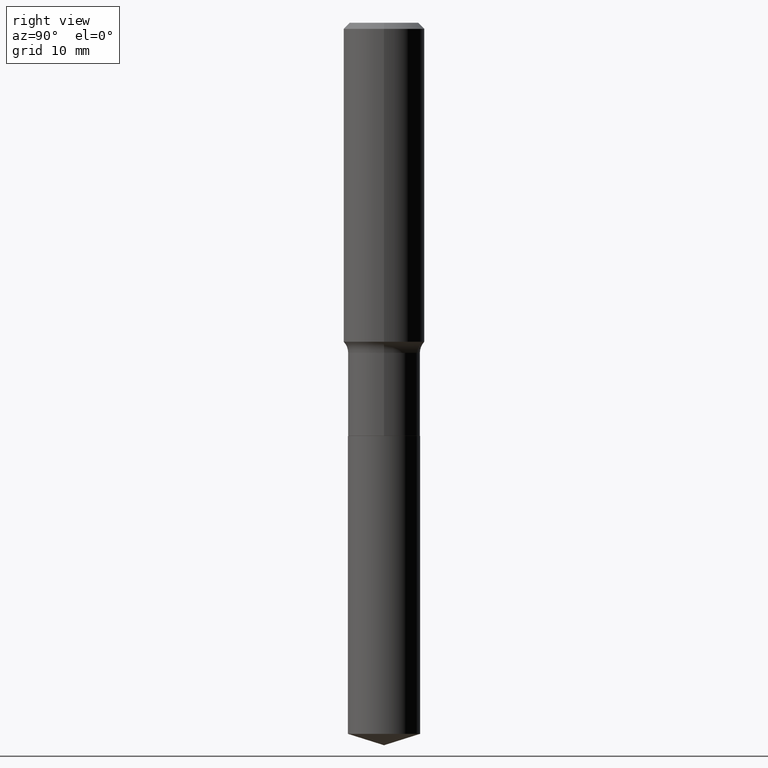
[diagram: clean part render]
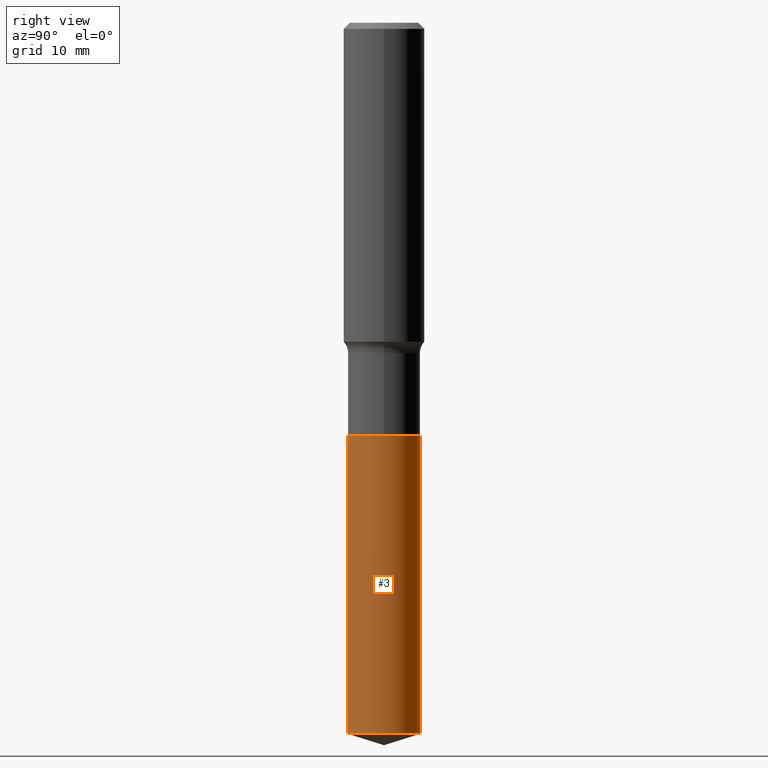
[diagram: same view with one face highlighted and labeled with its STEP entity id]
A machine part, right view. The second image highlights one B-rep face of the part: STEP entity #3.
In plain terms, the highlighted cylindrical surface (edge-blend (fillet) strip) has radius 4.4501 mm, axis along (-0, 0, 1).
Its self-contained STEP definition (entity closure, byte-faithful):
#1 = LINE ( 'NONE', #259, #117 ) ;
#3 = ADVANCED_FACE ( 'NONE', ( #428 ), #235, .T. ) ;
#6 = CARTESIAN_POINT ( 'NONE',  ( 8.433480303777848006E-29, -1.204108734173697850E-14, -3.448659652188401648 ) ) ;
#14 = CARTESIAN_POINT ( 'NONE',  ( -1.223415061130584771E-15, -0.1752000000000069890, -2.003899999999998904 ) ) ;
#40 = DIRECTION ( 'NONE',  ( -2.445393154295215171E-29, 3.491589676655351307E-15, 1.000000000000000000 ) ) ;
#53 = CARTESIAN_POINT ( 'NONE',  ( 4.900474940714394579E-29, -6.996579454907778104E-15, -2.003899999999999793 ) ) ;
#54 = EDGE_CURVE ( 'NONE', #319, #469, #382, .T. ) ;
#72 = CIRCLE ( 'NONE', #361, 0.1751999999999999946 ) ;
#78 = VECTOR ( 'NONE', #94, 39.37007874015748143 ) ;
#84 = DIRECTION ( 'NONE',  ( -6.982962677686265133E-15, -1.000000000000000000, 3.118547937972903315E-15 ) ) ;
#92 = EDGE_CURVE ( 'NONE', #319, #275, #209, .T. ) ;
#94 = DIRECTION ( 'NONE',  ( -2.445393154295215451E-29, 3.491589676655351307E-15, 1.000000000000000000 ) ) ;
#116 = AXIS2_PLACEMENT_3D ( 'NONE', #421, #354, #84 ) ;
#117 = VECTOR ( 'NONE', #258, 39.37007874015748143 ) ;
#161 = EDGE_LOOP ( 'NONE', ( #395, #208, #308, #193 ) ) ;
#187 = EDGE_CURVE ( 'NONE', #275, #430, #72, .T. ) ;
#193 = ORIENTED_EDGE ( 'NONE', *, *, #92, .F. ) ;
#208 = ORIENTED_EDGE ( 'NONE', *, *, #378, .T. ) ;
#209 = LINE ( 'NONE', #359, #78 ) ;
#224 = AXIS2_PLACEMENT_3D ( 'NONE', #6, #40, #458 ) ;
#235 = CYLINDRICAL_SURFACE ( 'NONE', #116, 0.1751999999999999946 ) ;
#258 = DIRECTION ( 'NONE',  ( -2.445393154295215451E-29, 3.491589676655351307E-15, 1.000000000000000000 ) ) ;
#259 = CARTESIAN_POINT ( 'NONE',  ( 1.244870873051744200E-15, 0.1751999999999929725, -2.003900000000000237 ) ) ;
#275 = VERTEX_POINT ( 'NONE', #14 ) ;
#281 = CARTESIAN_POINT ( 'NONE',  ( -1.223415061130549272E-15, -0.1752000000000120683, -3.448659652188400759 ) ) ;
#308 = ORIENTED_EDGE ( 'NONE', *, *, #187, .F. ) ;
#319 = VERTEX_POINT ( 'NONE', #281 ) ;
#354 = DIRECTION ( 'NONE',  ( -2.445393154295215171E-29, 3.491589676655351307E-15, 1.000000000000000000 ) ) ;
#359 = CARTESIAN_POINT ( 'NONE',  ( -1.223415061130584771E-15, -0.1752000000000069890, -2.003899999999998904 ) ) ;
#361 = AXIS2_PLACEMENT_3D ( 'NONE', #53, #483, #365 ) ;
#365 = DIRECTION ( 'NONE',  ( -6.982962677686265133E-15, -1.000000000000000000, 3.118547937972903315E-15 ) ) ;
#378 = EDGE_CURVE ( 'NONE', #469, #430, #1, .T. ) ;
#382 = CIRCLE ( 'NONE', #224, 0.1751999999999999946 ) ;
#383 = CARTESIAN_POINT ( 'NONE',  ( 1.244870873051779896E-15, 0.1751999999999929725, -2.003900000000000237 ) ) ;
#395 = ORIENTED_EDGE ( 'NONE', *, *, #54, .T. ) ;
#421 = CARTESIAN_POINT ( 'NONE',  ( 4.900474940714394579E-29, -6.996579454907778104E-15, -2.003899999999999793 ) ) ;
#428 = FACE_OUTER_BOUND ( 'NONE', #161, .T. ) ;
#430 = VERTEX_POINT ( 'NONE', #383 ) ;
#453 = CARTESIAN_POINT ( 'NONE',  ( 1.244870873051780093E-15, 0.1751999999999879210, -3.448659652188402092 ) ) ;
#458 = DIRECTION ( 'NONE',  ( -6.982962677686265133E-15, -1.000000000000000000, 3.118547937972903315E-15 ) ) ;
#469 = VERTEX_POINT ( 'NONE', #453 ) ;
#483 = DIRECTION ( 'NONE',  ( -2.445393154295215171E-29, 3.491589676655351307E-15, 1.000000000000000000 ) ) ;